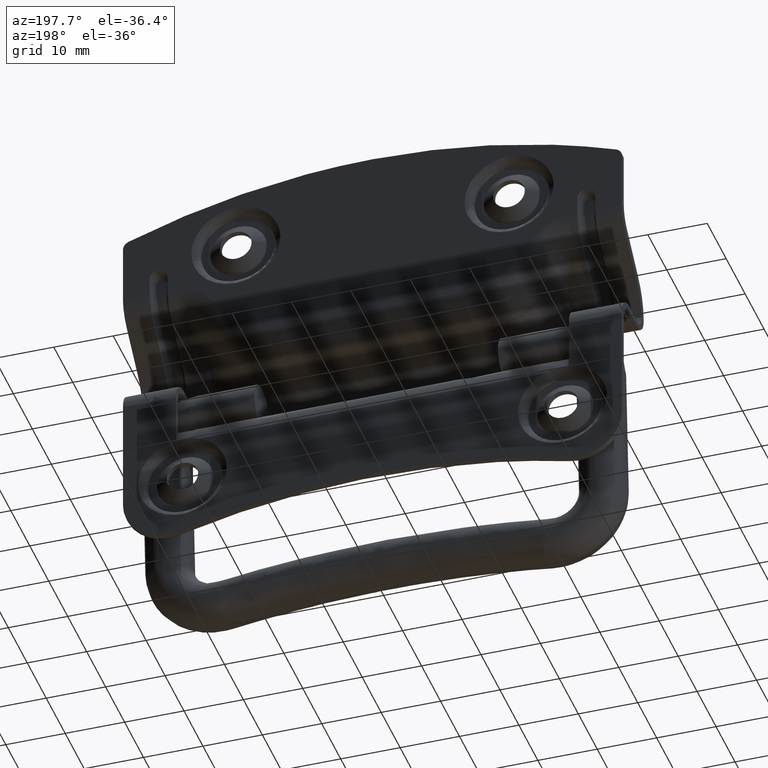
[diagram: clean part render]
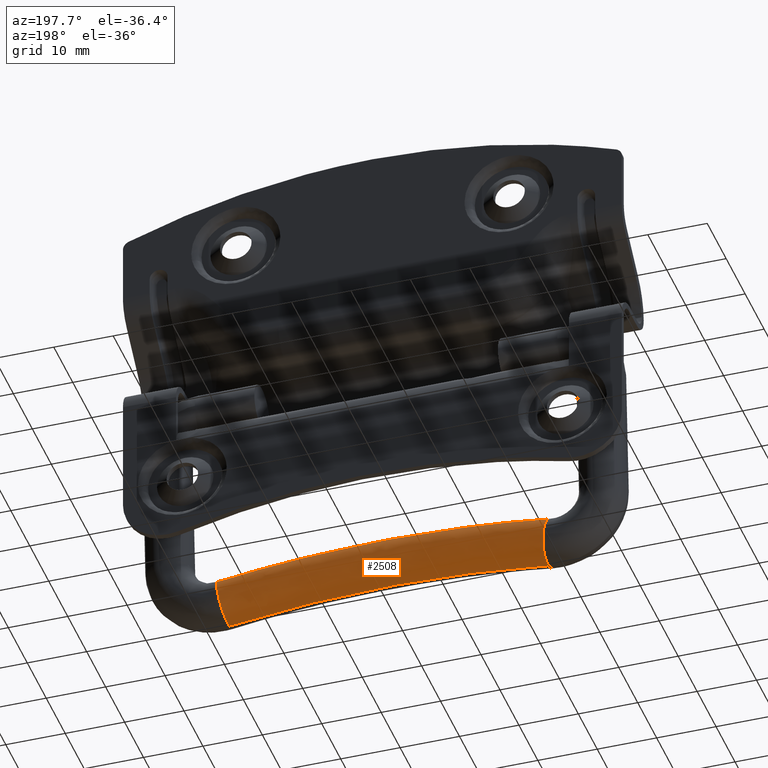
[diagram: same view with one face highlighted and labeled with its STEP entity id]
A machine part, auxiliary view. The second image highlights one B-rep face of the part: STEP entity #2508.
In plain terms, the highlighted face is a freeform B-spline surface patch.
Its self-contained STEP definition (entity closure, byte-faithful):
#2315=CARTESIAN_POINT('',(-27.911356696507749,-0.366723078216014,-32.462730820836583));
#2316=VERTEX_POINT('',#2315);
#2324=CARTESIAN_POINT('',(-26.886812739205119,-2.803786349880474,-39.858924079283632));
#2325=VERTEX_POINT('',#2324);
#2326=CARTESIAN_POINT('',(-27.911356696507749,-0.366723078216014,-32.462730820836583));
#2327=CARTESIAN_POINT('',(-27.880038082616210,0.109867972171490,-32.724049831171797));
#2328=CARTESIAN_POINT('',(-27.835515597401770,0.534129989585705,-33.079350283170477));
#2329=CARTESIAN_POINT('',(-27.674539204442851,1.507874554122100,-34.328167977581998));
#2330=CARTESIAN_POINT('',(-27.530927671618802,1.803554530513355,-35.405641123251051));
#2331=CARTESIAN_POINT('',(-27.249380236395300,1.538081307371705,-37.463976823384151));
#2332=CARTESIAN_POINT('',(-27.113178056003299,0.978562847537272,-38.432164490935051));
#2333=CARTESIAN_POINT('',(-26.926820881393649,-0.678115732543415,-39.699909706150599));
#2334=CARTESIAN_POINT('',(-26.877813443482552,-1.765074303230630,-39.991660690854452));
#2335=CARTESIAN_POINT('',(-26.886812739205119,-2.803786349880474,-39.858924079283632));
#2336=B_SPLINE_CURVE_WITH_KNOTS('',3,(#2326,#2327,#2328,#2329,#2330,#2331,#2332,#2333,#2334,#2335),.UNSPECIFIED.,.F.,.U.,(4,2,2,2,4),(0.559999985080583,0.625000000000000,0.750000000000000,0.875000000000000,1.0),.UNSPECIFIED.);
#2337=EDGE_CURVE('',#2316,#2325,#2336,.T.);
#2433=CARTESIAN_POINT('',(27.911356685728279,-0.366722914127287,-32.462730910807707));
#2434=CARTESIAN_POINT('',(27.880038062181121,0.109868166933891,-32.724049994276101));
#2435=CARTESIAN_POINT('',(27.835515584764739,0.534130066048441,-33.079350381232160));
#2436=CARTESIAN_POINT('',(27.674539204446251,1.507874554123255,-34.328167977582503));
#2437=CARTESIAN_POINT('',(27.530927671622202,1.803554530514510,-35.405641123251499));
#2438=CARTESIAN_POINT('',(27.249380236398650,1.538081307372860,-37.463976823384598));
#2439=CARTESIAN_POINT('',(27.113178056006699,0.978562847538426,-38.432164490935513));
#2440=CARTESIAN_POINT('',(26.926820881397049,-0.678115732542261,-39.699909706151097));
#2441=CARTESIAN_POINT('',(26.877813443485952,-1.765074303229475,-39.991660690854900));
#2442=CARTESIAN_POINT('',(26.886812739208501,-2.803786349880205,-39.858924079284080));
#2443=CARTESIAN_POINT('',(9.421697103480287,-0.206395112855722,-29.954763253342591));
#2444=CARTESIAN_POINT('',(9.411112601110828,0.270015328519233,-30.218908041952471));
#2445=CARTESIAN_POINT('',(9.396066212280660,0.694020465012574,-30.578224907473309));
#2446=CARTESIAN_POINT('',(9.341667895341381,1.666836845096395,-31.841560682191250));
#2447=CARTESIAN_POINT('',(9.293145975817708,1.961689387765115,-32.931977179220702));
#2448=CARTESIAN_POINT('',(9.198034156416679,1.694594960208560,-35.015672994376658));
#2449=CARTESIAN_POINT('',(9.152027932127052,1.134292578682558,-35.996123360733947));
#2450=CARTESIAN_POINT('',(9.089084802244749,-0.523458300190568,-37.280642287048252));
#2451=CARTESIAN_POINT('',(9.072533009309380,-1.610698810737315,-37.576803588601550));
#2452=CARTESIAN_POINT('',(9.075572418976424,-2.649359085516213,-37.443257122201423));
#2453=CARTESIAN_POINT('',(-9.421697123301666,-0.206395113016836,-29.954763255757729));
#2454=CARTESIAN_POINT('',(-9.411112620909826,0.270015328358589,-30.218908044372039));
#2455=CARTESIAN_POINT('',(-9.396066232047772,0.694020464852011,-30.578224909902751));
#2456=CARTESIAN_POINT('',(-9.341667914992540,1.666836844935290,-31.841560684691249));
#2457=CARTESIAN_POINT('',(-9.293145995366569,1.961689387595470,-32.931977181723312));
#2458=CARTESIAN_POINT('',(-9.198034175766210,1.694594960047335,-35.015672996820150));
#2459=CARTESIAN_POINT('',(-9.152027951378772,1.134292578522214,-35.996123363222402));
#2460=CARTESIAN_POINT('',(-9.089084821364859,-0.523458300352166,-37.280642289480298));
#2461=CARTESIAN_POINT('',(-9.072533028393620,-1.610698810898920,-37.576803591085337));
#2462=CARTESIAN_POINT('',(-9.075572438067095,-2.649359085676960,-37.443257124684017));
#2463=CARTESIAN_POINT('',(-27.911356685724918,-0.366722914128441,-32.462730910807217));
#2464=CARTESIAN_POINT('',(-27.880038062177761,0.109868166932737,-32.724049994275632));
#2465=CARTESIAN_POINT('',(-27.835515584761371,0.534130066047287,-33.079350381231691));
#2466=CARTESIAN_POINT('',(-27.674539204442851,1.507874554122100,-34.328167977581998));
#2467=CARTESIAN_POINT('',(-27.530927671618802,1.803554530513355,-35.405641123251051));
#2468=CARTESIAN_POINT('',(-27.249380236395300,1.538081307371705,-37.463976823384151));
#2469=CARTESIAN_POINT('',(-27.113178056003299,0.978562847537272,-38.432164490935051));
#2470=CARTESIAN_POINT('',(-26.926820881393649,-0.678115732543415,-39.699909706150599));
#2471=CARTESIAN_POINT('',(-26.877813443482552,-1.765074303230630,-39.991660690854452));
#2472=CARTESIAN_POINT('',(-26.886812739205102,-2.803786349881360,-39.858924079283632));
#2473=B_SPLINE_SURFACE_WITH_KNOTS('',3,3,((#2433,#2443,#2453,#2463),(#2434,#2444,#2454,#2464),(#2435,#2445,#2455,#2465),(#2436,#2446,#2456,#2466),(#2437,#2447,#2457,#2467),(#2438,#2448,#2458,#2468),(#2439,#2449,#2459,#2469),(#2440,#2450,#2460,#2470),(#2441,#2451,#2461,#2471),(#2442,#2452,#2462,#2472)),.UNSPECIFIED.,.F.,.F.,.U.,(4,2,2,2,4),(4,4),(0.0,1.633628179866693,4.775220833456490,7.916813487046286,11.058406140636080),(0.0,55.997045677786652),.UNSPECIFIED.);
#2474=ORIENTED_EDGE('',*,*,#2337,.F.);
#2475=CARTESIAN_POINT('',(27.911356696511099,-0.366723078214860,-32.462730820837052));
#2476=VERTEX_POINT('',#2475);
#2477=CARTESIAN_POINT('',(27.911356696511099,-0.366723078214860,-32.462730820837052));
#2478=CARTESIAN_POINT('',(9.421697103480287,-0.206395112855722,-29.954763253342598));
#2479=CARTESIAN_POINT('',(-9.421697123301666,-0.206395113016836,-29.954763255757740));
#2480=CARTESIAN_POINT('',(-27.911356696507749,-0.366723078216014,-32.462730820836583));
#2481=B_SPLINE_CURVE_WITH_KNOTS('',3,(#2477,#2478,#2479,#2480),.UNSPECIFIED.,.F.,.U.,(4,4),(0.333583312108288,0.666416687714544),.UNSPECIFIED.);
#2482=EDGE_CURVE('',#2476,#2316,#2481,.T.);
#2483=ORIENTED_EDGE('',*,*,#2482,.F.);
#2484=CARTESIAN_POINT('',(26.886812739208501,-2.803786349880205,-39.858924079284080));
#2485=VERTEX_POINT('',#2484);
#2486=CARTESIAN_POINT('',(27.911356696511099,-0.366723078214860,-32.462730820837052));
#2487=CARTESIAN_POINT('',(27.880038082619560,0.109867972172644,-32.724049831172259));
#2488=CARTESIAN_POINT('',(27.835515597405120,0.534129989586859,-33.079350283170939));
#2489=CARTESIAN_POINT('',(27.674539204446251,1.507874554123255,-34.328167977582503));
#2490=CARTESIAN_POINT('',(27.530927671622202,1.803554530514510,-35.405641123251499));
#2491=CARTESIAN_POINT('',(27.249380236398650,1.538081307372860,-37.463976823384598));
#2492=CARTESIAN_POINT('',(27.113178056006699,0.978562847538426,-38.432164490935513));
#2493=CARTESIAN_POINT('',(26.926820881397049,-0.678115732542261,-39.699909706151097));
#2494=CARTESIAN_POINT('',(26.877813443485952,-1.765074303229475,-39.991660690854900));
#2495=CARTESIAN_POINT('',(26.886812739208501,-2.803786349880205,-39.858924079284080));
#2496=B_SPLINE_CURVE_WITH_KNOTS('',3,(#2486,#2487,#2488,#2489,#2490,#2491,#2492,#2493,#2494,#2495),.UNSPECIFIED.,.F.,.U.,(4,2,2,2,4),(0.559999985080583,0.625000000000000,0.750000000000000,0.875000000000000,1.0),.UNSPECIFIED.);
#2497=EDGE_CURVE('',#2476,#2485,#2496,.T.);
#2498=ORIENTED_EDGE('',*,*,#2497,.T.);
#2499=CARTESIAN_POINT('',(26.886812739208501,-2.803786349880205,-39.858924079284080));
#2500=CARTESIAN_POINT('',(9.075572418976424,-2.649359085516213,-37.443257122201423));
#2501=CARTESIAN_POINT('',(-9.075572438067095,-2.649359085676960,-37.443257124684017));
#2502=CARTESIAN_POINT('',(-26.886812739205119,-2.803786349880474,-39.858924079283632));
#2503=B_SPLINE_CURVE_WITH_KNOTS('',3,(#2499,#2500,#2501,#2502),.UNSPECIFIED.,.F.,.U.,(4,4),(0.333583312108288,0.666416687714544),.UNSPECIFIED.);
#2504=EDGE_CURVE('',#2485,#2325,#2503,.T.);
#2505=ORIENTED_EDGE('',*,*,#2504,.T.);
#2506=EDGE_LOOP('',(#2474,#2483,#2498,#2505));
#2507=FACE_OUTER_BOUND('',#2506,.T.);
#2508=ADVANCED_FACE('',(#2507),#2473,.T.);